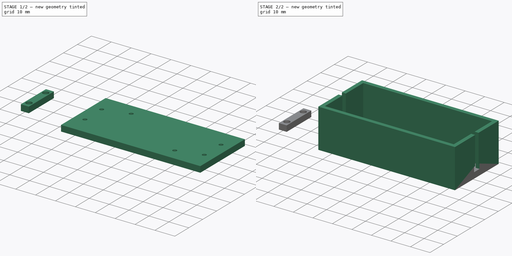
[diagram: build sequence overview — one tinted view per stage of 2, left to right]
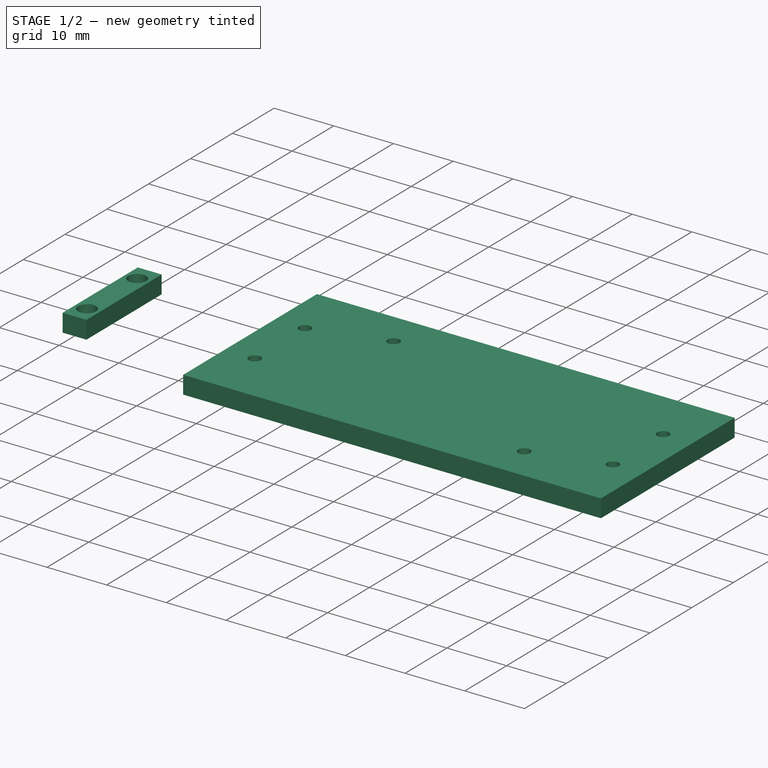
[diagram: stage 1 of 2 — iso view after this stage's code; geometry added in this stage tinted green]
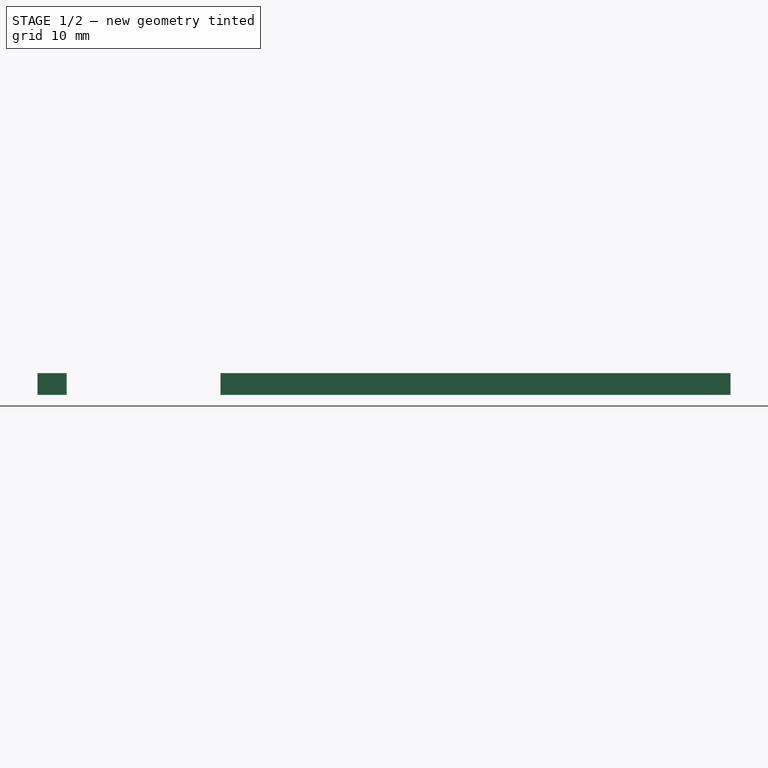
[diagram: stage 1 of 2 — front view after this stage's code; geometry added in this stage tinted green]
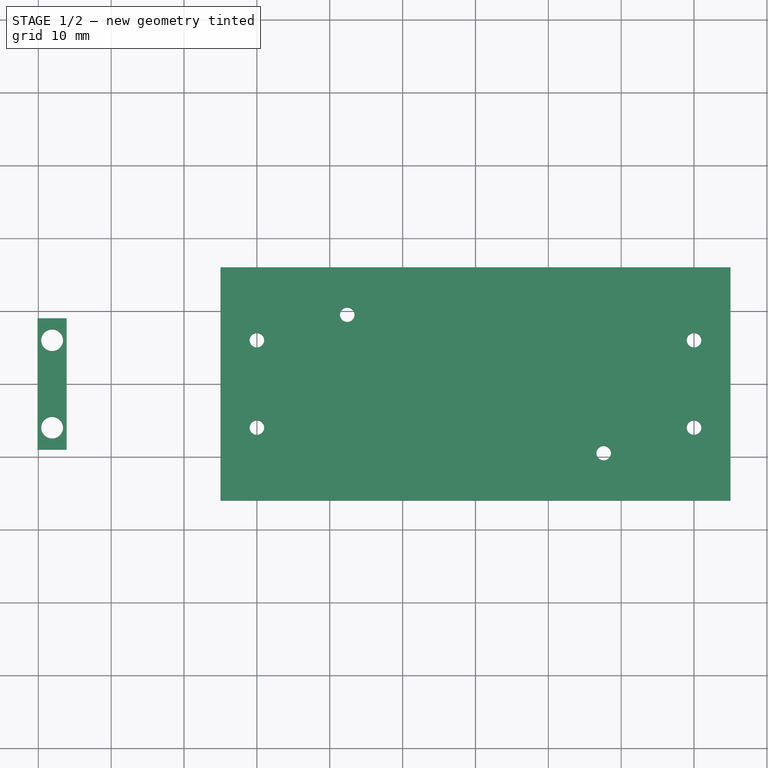
[diagram: stage 1 of 2 — top view after this stage's code; geometry added in this stage tinted green]
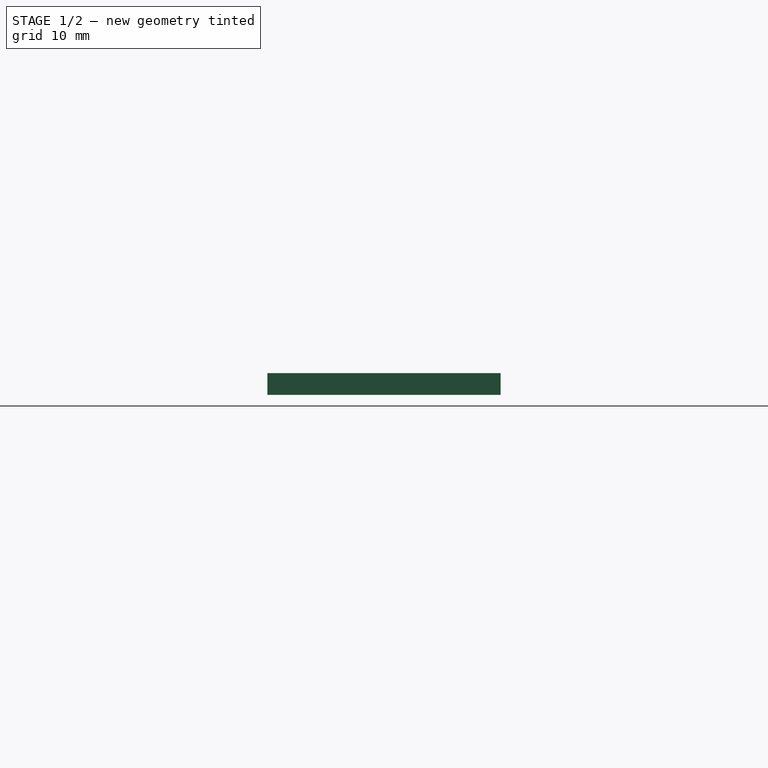
[diagram: stage 1 of 2 — right view after this stage's code; geometry added in this stage tinted green]
FCSTD DOCUMENT  (FreeCAD 1.0R39109 (Git))
Label: solar panel boost
License: All rights reserved
LicenseURL: https://en.wikipedia.org/wiki/All_rights_reserved
objects: Sketcher::SketchObject×4, PartDesign::Pad×3, PartDesign::Body×2, PartDesign::Pocket×1
note: 22 computed .brp shape members not serialized (recipe doc carries the construction recipe); baked Part::Feature solids carry a one-line shape summary decoded from their .brp

FEATURE [Sketcher::SketchObject] Sketch
  ArcFitTolerance = 1e-06
  AttachmentSupport = -> [XY_Plane]
  FullyConstrained = true
  MakeInternals = false
  MapMode = 5
  sketch-geometry (11):
    g0: LineSegment StartX=-35 StartY=16 StartZ=0 EndX=-35 EndY=-16 EndZ=0
    g1: LineSegment StartX=-35 StartY=-16 StartZ=0 EndX=35 EndY=-16 EndZ=0
    g2: LineSegment StartX=35 StartY=-16 StartZ=0 EndX=35 EndY=16 EndZ=0
    g3: LineSegment StartX=35 StartY=16 StartZ=0 EndX=-35 EndY=16 EndZ=0
    g4: GeomPoint [constr] X=0 Y=0 Z=0
    g5: Circle CenterX=-17.5997 CenterY=9.5 CenterZ=0 NormalX=0 NormalY=0 NormalZ=1 AngleXU=0 Radius=1
    g6: Circle CenterX=17.5997 CenterY=-9.5 CenterZ=0 NormalX=0 NormalY=0 NormalZ=1 AngleXU=0 Radius=1
    g7: Circle CenterX=-30 CenterY=6 CenterZ=0 NormalX=0 NormalY=0 NormalZ=1 AngleXU=0 Radius=1
    g8: Circle CenterX=-30 CenterY=-6 CenterZ=0 NormalX=0 NormalY=0 NormalZ=1 AngleXU=0 Radius=1
    g9: Circle CenterX=30 CenterY=6 CenterZ=0 NormalX=0 NormalY=0 NormalZ=1 AngleXU=0 Radius=1
    g10: Circle CenterX=30 CenterY=-6 CenterZ=0 NormalX=0 NormalY=0 NormalZ=1 AngleXU=0 Radius=1
  constraints (27):
    c: Coincident(g0,g1)
    c: Coincident(g1,g2)
    c: Coincident(g2,g3)
    c: Coincident(g3,g0)
    c: Vertical(g0)
    c: Vertical(g2)
    c: Horizontal(g1)
    c: Horizontal(g3)
    c: Symmetric(g2,g0,g4)
    c: Coincident(g4,g-1)
    c: DistanceX(g3,g3) = 70
    c: DistanceY(g2,g2) = 32
    c: Symmetric(g5,g6,g4)
    c: Distance(g6,g5) = 40
    c: DistanceY(g6,g5) = 19
    c: Diameter(g5) = 2
    c: Equal(g5,g6)
    c: Symmetric(g7,g8,g-1)
    c: Equal(g7,g8)
    c: Equal(g8,g9)
    c: Equal(g9,g10)
    c: Equal(g10,g5)
    c: DistanceY(g8,g7) = 12
    c: Symmetric(g10,g9,g-1)
    c: DistanceY(g10,g9) = 12
    c: DistanceX(g0,g7) = 5
    c: DistanceX(g9,g2) = 5
FEATURE [PartDesign::Pad] Pad
  Direction = (0,0,1)
  Length = 3
  Length2 = 10
  Profile = -> Sketch
  ReferenceAxis = -> Sketch [N_Axis]
  Refine = true
  Suppressed = false
  Type = 0
FEATURE [PartDesign::Body] Body
  AllowCompound = false
  Group = -> [Sketch,Pad,Sketch001,Pad001,Sketch002,Pocket]
  Origin = -> Origin
  Tip = -> Pocket
FEATURE [Sketcher::SketchObject] Sketch003
  ArcFitTolerance = 1e-06
  AttachmentSupport = -> [XY_Plane001]
  FullyConstrained = false
  MakeInternals = false
  MapMode = 5
  sketch-geometry (6):
    g0: LineSegment StartX=-60.1079 StartY=9 StartZ=0 EndX=-60.1079 EndY=-9 EndZ=0
    g1: LineSegment StartX=-60.1079 StartY=-9 StartZ=0 EndX=-56.1079 EndY=-9 EndZ=0
    g2: LineSegment StartX=-56.1079 StartY=-9 StartZ=0 EndX=-56.1079 EndY=9 EndZ=0
    g3: LineSegment StartX=-56.1079 StartY=9 StartZ=0 EndX=-60.1079 EndY=9 EndZ=0
    g4: Circle CenterX=-58.1079 CenterY=6 CenterZ=0 NormalX=0 NormalY=0 NormalZ=1 AngleXU=0 Radius=1.5
    g5: Circle CenterX=-58.1079 CenterY=-6 CenterZ=0 NormalX=0 NormalY=0 NormalZ=1 AngleXU=0 Radius=1.5
  constraints (16):
    c: Coincident(g0,g1)
    c: Coincident(g1,g2)
    c: Coincident(g2,g3)
    c: Coincident(g3,g0)
    c: Vertical(g0)
    c: Vertical(g2)
    c: Horizontal(g1)
    c: Horizontal(g3)
    c: DistanceY(g2,g2) = 18
    c: DistanceX(g3,g3) = 4
    c: DistanceY(g5,g4) = 12
    c: Equal(g4,g5)
    c: Diameter(g4) = 3
    c: Symmetric(g5,g4,g-1)
    c: DistanceY(g4,g0) = 3
    c: DistanceX(g0,g4) = 2
FEATURE [PartDesign::Pad] Pad002
  Direction = (0,0,1)
  Length = 3
  Length2 = 10
  Profile = -> Sketch003
  ReferenceAxis = -> Sketch003 [N_Axis]
  Refine = true
  Suppressed = false
  Type = 0
FEATURE [PartDesign::Body] Body001
  AllowCompound = false
  Group = -> [Sketch003,Pad002]
  Origin = -> Origin001
  Tip = -> Pad002
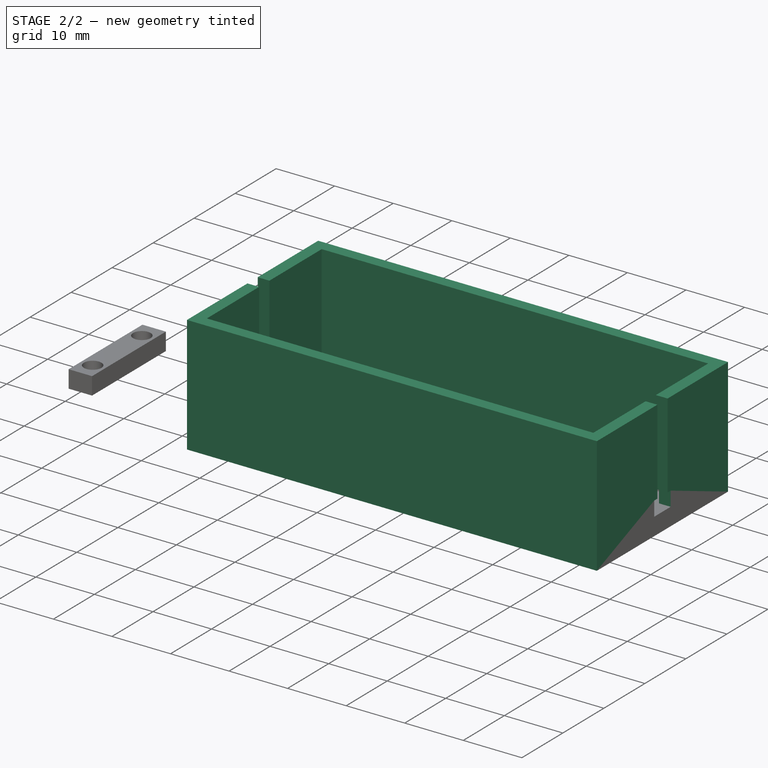
[diagram: stage 2 of 2 — iso view after this stage's code; geometry added in this stage tinted green]
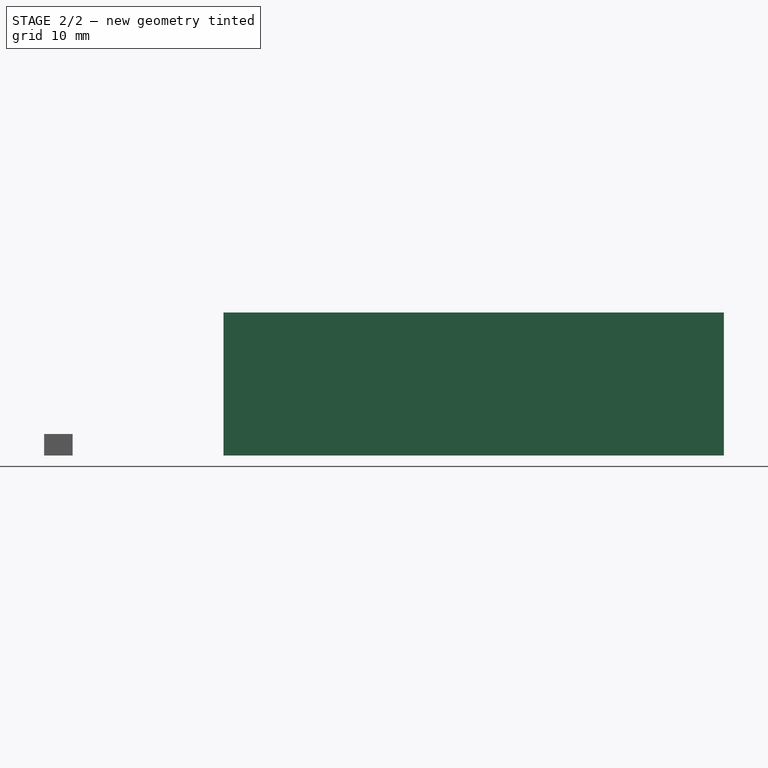
[diagram: stage 2 of 2 — front view after this stage's code; geometry added in this stage tinted green]
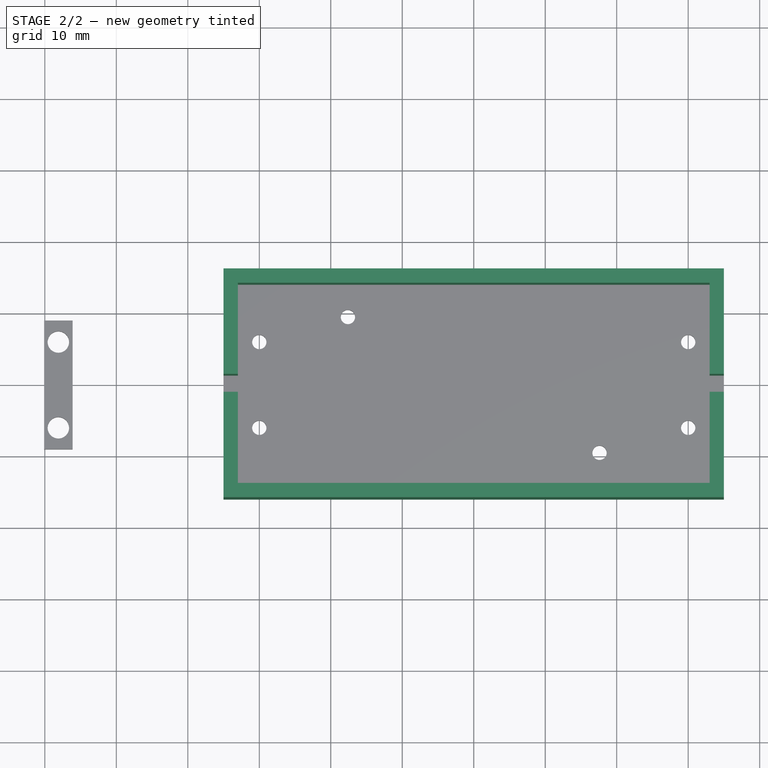
[diagram: stage 2 of 2 — top view after this stage's code; geometry added in this stage tinted green]
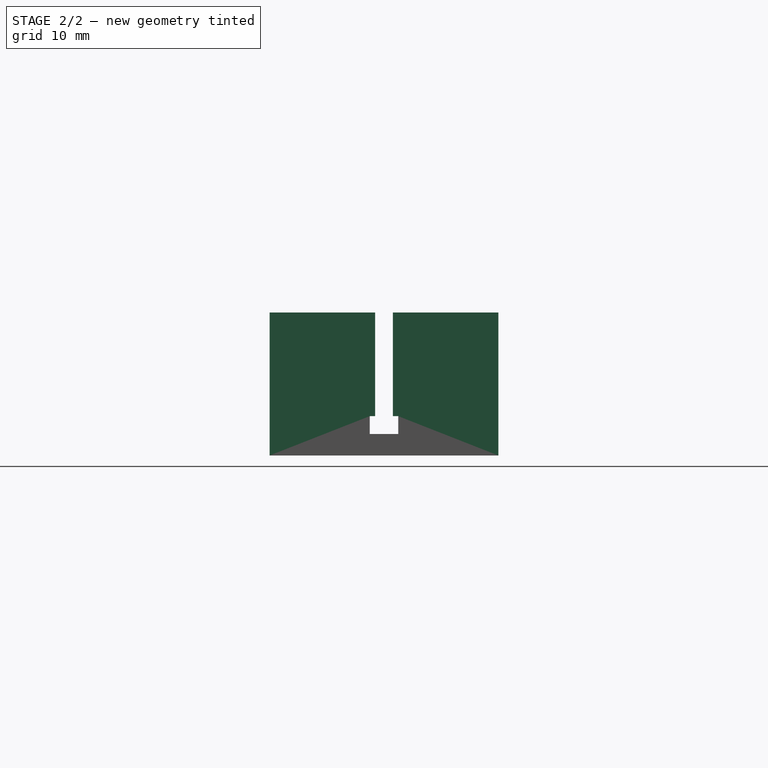
[diagram: stage 2 of 2 — right view after this stage's code; geometry added in this stage tinted green]
FEATURE [Sketcher::SketchObject] Sketch001
  ArcFitTolerance = 1e-06
  AttachmentSupport = -> [XY_Plane]
  ExternalGeometry = -> [Pad]
  FullyConstrained = true
  MakeInternals = false
  MapMode = 5
  sketch-geometry (8):
    g0: LineSegment StartX=-35 StartY=16 StartZ=0 EndX=-35 EndY=-16 EndZ=0
    g1: LineSegment StartX=-35 StartY=-16 StartZ=0 EndX=35 EndY=-16 EndZ=0
    g2: LineSegment StartX=35 StartY=-16 StartZ=0 EndX=35 EndY=16 EndZ=0
    g3: LineSegment StartX=35 StartY=16 StartZ=0 EndX=-35 EndY=16 EndZ=0
    g4: LineSegment StartX=-33 StartY=14 StartZ=0 EndX=-33 EndY=-14 EndZ=0
    g5: LineSegment StartX=-33 StartY=-14 StartZ=0 EndX=33 EndY=-14 EndZ=0
    g6: LineSegment StartX=33 StartY=-14 StartZ=0 EndX=33 EndY=14 EndZ=0
    g7: LineSegment StartX=33 StartY=14 StartZ=0 EndX=-33 EndY=14 EndZ=0
  constraints (22):
    c: Coincident(g0,g1)
    c: Coincident(g1,g2)
    c: Coincident(g2,g3)
    c: Coincident(g3,g0)
    c: Vertical(g0)
    c: Vertical(g2)
    c: Horizontal(g1)
    c: Horizontal(g3)
    c: Coincident(g0,g-3)
    c: Coincident(g1,g-4)
    c: Coincident(g4,g5)
    c: Coincident(g5,g6)
    c: Coincident(g6,g7)
    c: Coincident(g7,g4)
    c: Vertical(g4)
    c: Vertical(g6)
    c: Horizontal(g5)
    c: Horizontal(g7)
    c: DistanceY(g4,g0) = 2
    c: DistanceX(g0,g4) = 2
    c: DistanceX(g5,g1) = 2
    c: DistanceY(g1,g5) = 2
FEATURE [PartDesign::Pad] Pad001
  BaseFeature = -> Pad
  Direction = (0,0,1)
  Length = 20
  Length2 = 10
  Profile = -> Sketch001
  ReferenceAxis = -> Sketch001 [N_Axis]
  Refine = true
  Suppressed = false
  Type = 0
FEATURE [Sketcher::SketchObject] Sketch002
  ArcFitTolerance = 1e-06
  AttachmentSupport = -> [YZ_Plane]
  ExternalGeometry = -> [Pad001]
  FullyConstrained = true
  MakeInternals = false
  MapMode = 5
  Placement = pos=(0,0,0) rot=(0.57735,0.57735,0.57735;2.0944rad)
  sketch-geometry (9):
    g0: LineSegment StartX=-2 StartY=5.5 StartZ=0 EndX=-2 EndY=3 EndZ=0
    g1: LineSegment StartX=-2 StartY=3 StartZ=0 EndX=2 EndY=3 EndZ=0
    g2: LineSegment StartX=2 StartY=3 StartZ=0 EndX=2 EndY=5.5 EndZ=0
    g3: GeomPoint [constr] X=0 Y=4.25 Z=0
    g4: LineSegment StartX=2 StartY=5.5 StartZ=0 EndX=1.25 EndY=5.5 EndZ=0
    g5: LineSegment StartX=1.25 StartY=5.5 StartZ=0 EndX=1.25 EndY=20 EndZ=0
    g6: LineSegment StartX=1.25 StartY=20 StartZ=0 EndX=-1.25 EndY=20 EndZ=0
    g7: LineSegment StartX=-2 StartY=5.5 StartZ=0 EndX=-1.25 EndY=5.5 EndZ=0
    g8: LineSegment StartX=-1.25 StartY=5.5 StartZ=0 EndX=-1.25 EndY=20 EndZ=0
  constraints (24):
    c: Coincident(g0,g1)
    c: Coincident(g1,g2)
    c: Vertical(g0)
    c: Vertical(g2)
    c: Horizontal(g1)
    c: Symmetric(g2,g0,g3)
    c: PointOnObject(g3,g-2)
    c: DistanceX(g1,g1) = 4
    c: DistanceY(g-1,g0) = 3
    c: DistanceY(g0,g0) = 2.5
    c: Coincident(g2,g4)
    c: Coincident(g4,g5)
    c: Coincident(g5,g6)
    c: Coincident(g0,g7)
    c: Coincident(g7,g8)
    c: Coincident(g8,g6)
    c: Horizontal(g7)
    c: Vertical(g8)
    c: Vertical(g5)
    c: Symmetric(g5,g6,g-2)
    c: Horizontal(g6,g-3)
    c: Horizontal(g4)
    c: DistanceX(g6,g6) = 2.5
    c: Horizontal(g4,g7)
FEATURE [PartDesign::Pocket] Pocket
  BaseFeature = -> Pad001
  Direction = (-1,0,0)
  Length = 5
  Length2 = 5
  Midplane = true
  Profile = -> Sketch002
  ReferenceAxis = -> Sketch002 [N_Axis]
  Refine = true
  Suppressed = false
  Type = 1
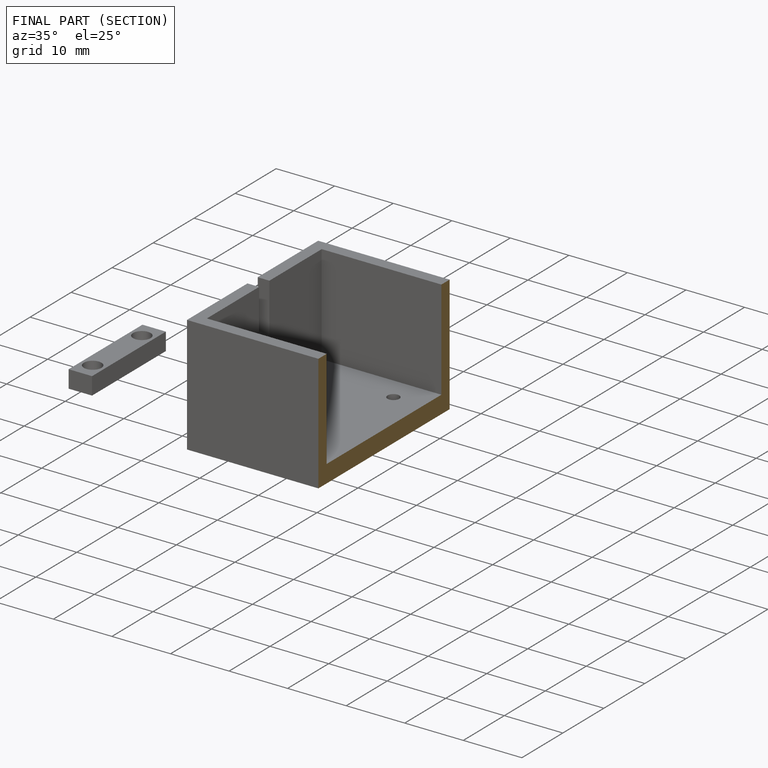
[diagram: finished part — half-section view (interior)]
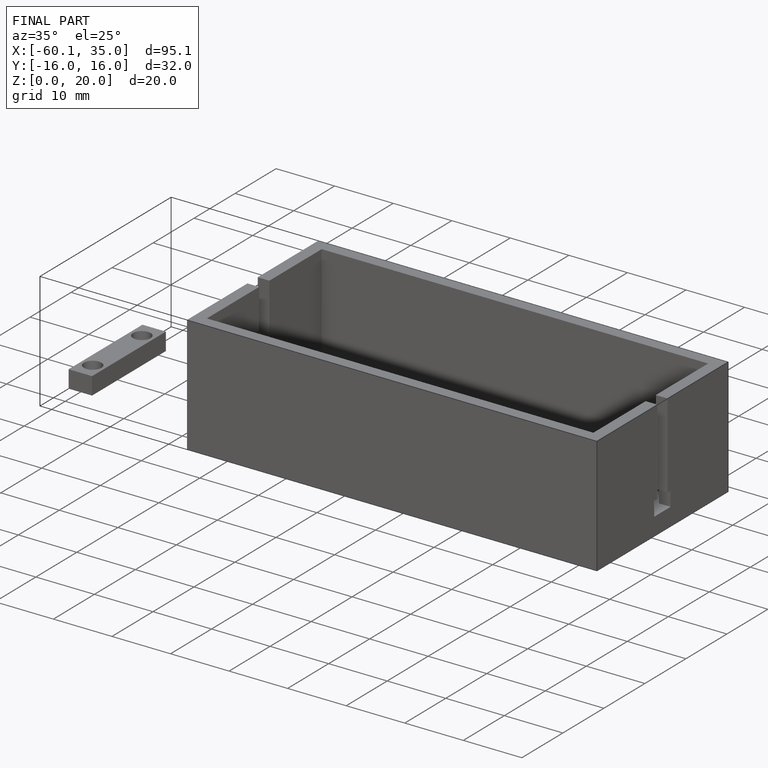
[diagram: finished part — iso view with bounding-box wireframe]
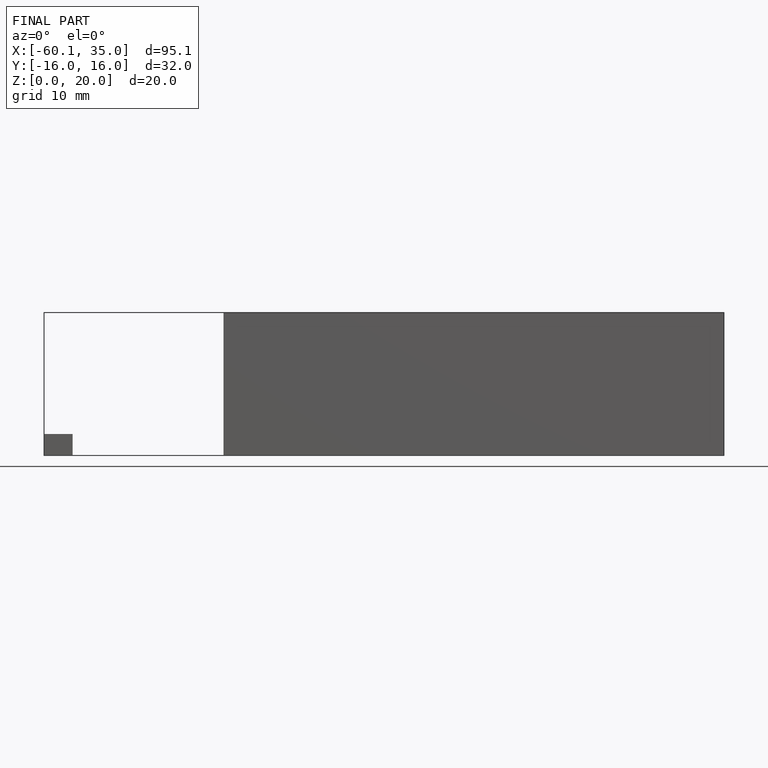
[diagram: finished part — front view with bounding-box wireframe]
